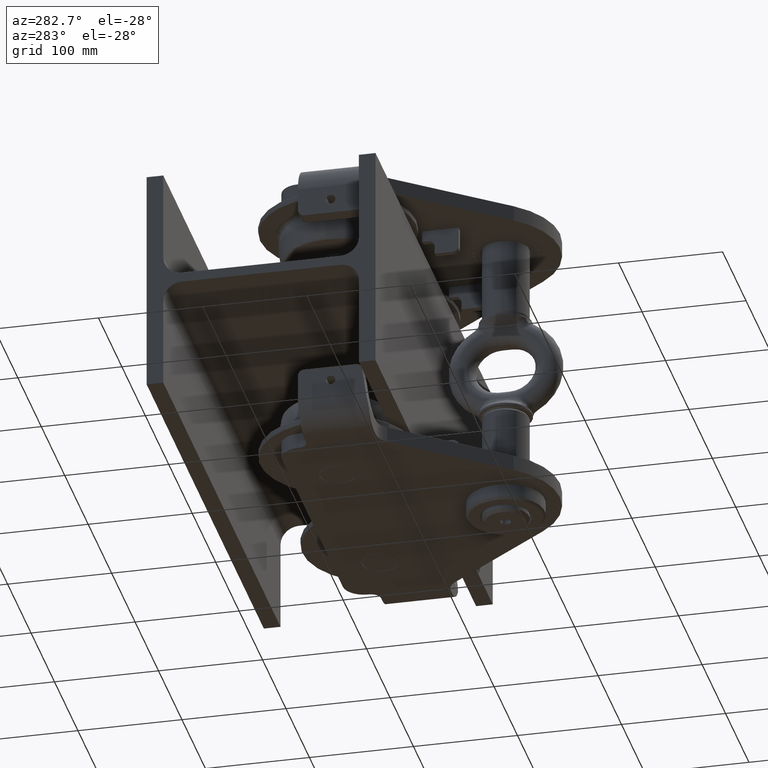
[diagram: clean part render]
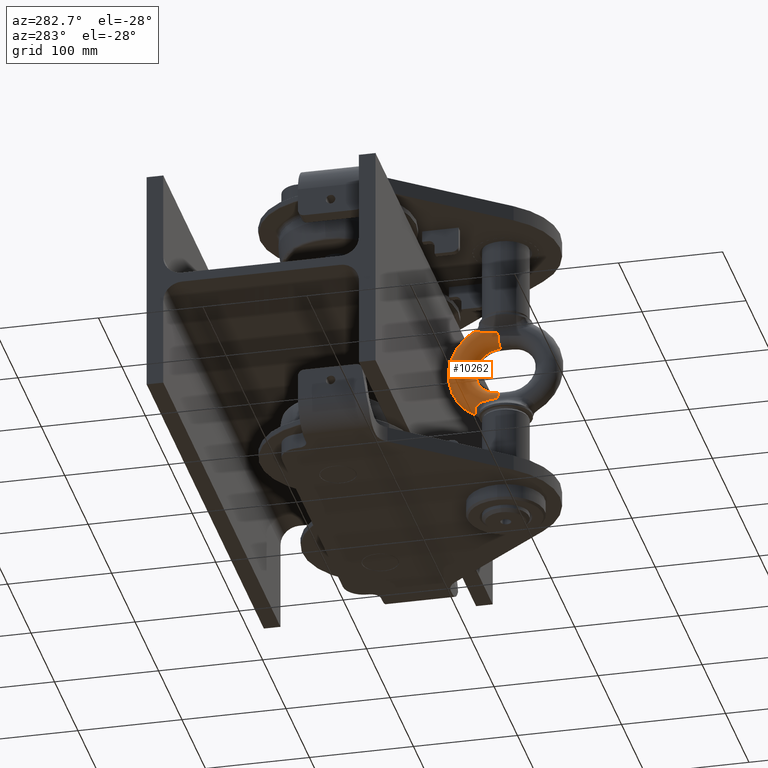
[diagram: same view with one face highlighted and labeled with its STEP entity id]
A machine part, auxiliary view. The second image highlights one B-rep face of the part: STEP entity #10262.
In plain terms, the highlighted toroidal blend (fillet) surface has major radius 37 mm and minor (blend) radius 13 mm.
Its self-contained STEP definition (entity closure, byte-faithful):
#123 = CARTESIAN_POINT ( 'NONE',  ( -4.126795824187541800, -150.3774706358872800, 43.31617817567501300 ) ) ;
#272 = CARTESIAN_POINT ( 'NONE',  ( -7.185264387827653600, -150.8312455031002900, 41.85206581027909300 ) ) ;
#387 = VERTEX_POINT ( 'NONE', #15792 ) ;
#430 = CARTESIAN_POINT ( 'NONE',  ( 2.744710946919647600E-014, -173.9999999999998300, -2.774178518931964300E-016 ) ) ;
#1069 = VERTEX_POINT ( 'NONE', #10574 ) ;
#1971 = AXIS2_PLACEMENT_3D ( 'NONE', #14862, #30727, #20926 ) ;
#2225 = CARTESIAN_POINT ( 'NONE',  ( -11.60032737261926300, -155.0634041624952600, 38.47893709284785000 ) ) ;
#2726 = VERTEX_POINT ( 'NONE', #33527 ) ;
#2748 = CARTESIAN_POINT ( 'NONE',  ( -13.00397407085162300, -165.1430070251889200, -35.67485218921547100 ) ) ;
#2946 = CARTESIAN_POINT ( 'NONE',  ( -12.49187938406649900, -157.9343161517337800, -37.30914371682165200 ) ) ;
#2961 = CARTESIAN_POINT ( 'NONE',  ( -5.108037256205252100, -150.4322352143473400, -42.92117714183658700 ) ) ;
#3496 = CARTESIAN_POINT ( 'NONE',  ( -11.78796919045115200, -155.5184320626287000, -38.26945000662115600 ) ) ;
#3677 = CARTESIAN_POINT ( 'NONE',  ( -5.106666925261316200, -150.4321372324452300, 42.92175391128027700 ) ) ;
#4170 = FACE_OUTER_BOUND ( 'NONE', #18770, .T. ) ;
#4297 = CARTESIAN_POINT ( 'NONE',  ( 2.585506863030491600E-014, -173.9999999999998300, -2.774178518931963300E-016 ) ) ;
#4404 = AXIS2_PLACEMENT_3D ( 'NONE', #15291, #21181, #30987 ) ;
#4838 = ORIENTED_EDGE ( 'NONE', *, *, #41986, .F. ) ;
#5735 = CARTESIAN_POINT ( 'NONE',  ( 2.744725740201605500E-014, -174.0000000000001400, -24.00000000000000700 ) ) ;
#5858 = CARTESIAN_POINT ( 'NONE',  ( -12.84832408835447200, -160.1608773310472900, -36.62545777020226000 ) ) ;
#5954 = CARTESIAN_POINT ( 'NONE',  ( -10.37587372167099000, -152.9682928836155600, 39.60983024298323600 ) ) ;
#6055 = CARTESIAN_POINT ( 'NONE',  ( -3.624959882921664300, -150.3724144851626600, -43.49161704077764800 ) ) ;
#6128 = CARTESIAN_POINT ( 'NONE',  ( -12.86425548061780500, -171.4631150170776600, -35.04135263025277400 ) ) ;
#6179 = CARTESIAN_POINT ( 'NONE',  ( -12.66491729358793000, -158.9504694812896400, -36.98811240190378400 ) ) ;
#6190 = CARTESIAN_POINT ( 'NONE',  ( -6.954048594210359400, -150.7519674474799000, -41.99015946408147900 ) ) ;
#6551 = VERTEX_POINT ( 'NONE', #10490 ) ;
#6625 = CARTESIAN_POINT ( 'NONE',  ( -1.322405953972530100, -150.4172242647102300, -44.01566758116266000 ) ) ;
#7088 = ORIENTED_EDGE ( 'NONE', *, *, #23896, .T. ) ;
#7165 = EDGE_CURVE ( 'NONE', #1069, #18006, #37956, .T. ) ;
#7316 = CARTESIAN_POINT ( 'NONE',  ( -12.83861664616715000, -172.7310447336118100, 34.95649181765214300 ) ) ;
#7556 = DIRECTION ( 'NONE',  ( -1.000000000000000000, 0.0000000000000000000, 6.939431567305113600E-017 ) ) ;
#7661 = DIRECTION ( 'NONE',  ( 6.939431567305119800E-017, 0.0000000000000000000, 1.000000000000000000 ) ) ;
#7798 = EDGE_CURVE ( 'NONE', #2726, #36268, #41094, .T. ) ;
#7885 = CARTESIAN_POINT ( 'NONE',  ( -13.00397407085193900, -165.1430070251586500, 35.67485218921955700 ) ) ;
#9481 = CARTESIAN_POINT ( 'NONE',  ( -0.5325024134241305200, -150.4310632052977000, -44.08722849374721200 ) ) ;
#9631 = CARTESIAN_POINT ( 'NONE',  ( -9.026466925798279900, -151.7044232427096200, -40.65823208507983100 ) ) ;
#9946 = CARTESIAN_POINT ( 'NONE',  ( -1.060627942873457100, -150.4236381271634900, 44.05541452376682100 ) ) ;
#10262 = ADVANCED_FACE ( 'NONE', ( #4170 ), #31604, .T. ) ;
#10490 = CARTESIAN_POINT ( 'NONE',  ( -10.64923492088181300, -153.3627968386385900, -39.37579039668916900 ) ) ;
#10574 = CARTESIAN_POINT ( 'NONE',  ( -12.66491729358793000, -158.9504694812896400, -36.98811240190378400 ) ) ;
#10897 = CARTESIAN_POINT ( 'NONE',  ( -13.01160287401232600, -163.8827071818277800, 35.86164647787091300 ) ) ;
#11275 = EDGE_CURVE ( 'NONE', #387, #16191, #15475, .T. ) ;
#12517 = CARTESIAN_POINT ( 'NONE',  ( -12.66491729358598500, -158.9504694812768000, 36.98811240190762100 ) ) ;
#12608 = CARTESIAN_POINT ( 'NONE',  ( -12.82598181632842000, -174.0000000000003100, -34.88004942340343500 ) ) ;
#12674 = VERTEX_POINT ( 'NONE', #17372 ) ;
#12685 = CARTESIAN_POINT ( 'NONE',  ( -5.583642498886416000, -150.4816008524955200, -42.70342754939914400 ) ) ;
#12943 = CARTESIAN_POINT ( 'NONE',  ( -11.59991964931826500, -155.0629037704025000, -38.47925817452200200 ) ) ;
#13522 = CARTESIAN_POINT ( 'NONE',  ( -12.82598181632842000, -174.0000000000003100, -34.88004942340343500 ) ) ;
#13557 = CARTESIAN_POINT ( 'NONE',  ( -6.280057891702952600, -150.6023575199406000, 42.35218688830372700 ) ) ;
#13838 = CARTESIAN_POINT ( 'NONE',  ( -8.834421653536889400, -151.5914069804493400, 40.79058265171078500 ) ) ;
#14009 = DIRECTION ( 'NONE',  ( -1.000000000000000000, 0.0000000000000000000, 0.0000000000000000000 ) ) ;
#14862 = CARTESIAN_POINT ( 'NONE',  ( 2.328747895040202500E-014, -174.0000000000003400, -37.00000000000000700 ) ) ;
#15291 = CARTESIAN_POINT ( 'NONE',  ( 2.585506863030491600E-014, -173.9999999999998300, -2.774178518931963300E-016 ) ) ;
#15475 = CIRCLE ( 'NONE', #21080, 24.00000000000000700 ) ;
#15792 = CARTESIAN_POINT ( 'NONE',  ( 2.744725740201605500E-014, -173.9999999999998300, 24.00000000000000700 ) ) ;
#16191 = VERTEX_POINT ( 'NONE', #5735 ) ;
#16510 = CARTESIAN_POINT ( 'NONE',  ( -11.16903574985336400, -154.1850741913187900, -38.91377092785835100 ) ) ;
#16571 = CARTESIAN_POINT ( 'NONE',  ( -5.583411883682780200, -150.4814319288086900, 42.70363104057202700 ) ) ;
#17357 = CARTESIAN_POINT ( 'NONE',  ( -10.64923492088180100, -153.3627968386385900, 39.37579039668915500 ) ) ;
#17372 = CARTESIAN_POINT ( 'NONE',  ( -12.82598181632842200, -173.9999999999998300, 34.88004942340346300 ) ) ;
#18006 = VERTEX_POINT ( 'NONE', #13522 ) ;
#18770 = EDGE_LOOP ( 'NONE', ( #7088, #21061, #32950, #30896, #19000, #27711, #41650, #4838, #19289, #39091 ) ) ;
#18909 = AXIS2_PLACEMENT_3D ( 'NONE', #4297, #7556, #23922 ) ;
#19000 = ORIENTED_EDGE ( 'NONE', *, *, #7165, .T. ) ;
#19289 = ORIENTED_EDGE ( 'NONE', *, *, #34032, .T. ) ;
#19499 = CARTESIAN_POINT ( 'NONE',  ( -2.613865860973597000, -150.3828980740276500, -43.78148073780955900 ) ) ;
#19669 = CARTESIAN_POINT ( 'NONE',  ( 8.090608528811870800E-014, -150.4333191911561000, 44.09775000670757100 ) ) ;
#19937 = CARTESIAN_POINT ( 'NONE',  ( -9.387460757505071000, -151.9894035919177800, 40.38863273003855200 ) ) ;
#19983 = B_SPLINE_CURVE_WITH_KNOTS ( 'NONE', 3,
 ( #22975, #35944, #16510, #12943, #3496, #41909, #22425, #2946, #25652, #6179 ),
 .UNSPECIFIED., .F., .F.,
 ( 4, 2, 2, 2, 4 ),
 ( 0.03174981577005631800, 0.03335436533337771100, 0.03495891489669909800, 0.03656346446002049100, 0.03816801402334188400 ),
 .UNSPECIFIED. ) ;
#20686 = B_SPLINE_CURVE_WITH_KNOTS ( 'NONE', 3,
 ( #25627, #26943, #28778, #25730, #2225, #38493, #42039, #17357 ),
 .UNSPECIFIED., .F., .F.,
 ( 4, 2, 2, 4 ),
 ( 0.0000000000000000000, 0.003220178139374472700, 0.004830267209061709900, 0.006440356278748947000 ),
 .UNSPECIFIED. ) ;
#20858 = CARTESIAN_POINT ( 'NONE',  ( -12.86425548061794900, -171.4631150170705800, 35.04135263025323600 ) ) ;
#20926 = DIRECTION ( 'NONE',  ( -1.000000000000000000, 0.0000000000000000000, 0.0000000000000000000 ) ) ;
#21061 = ORIENTED_EDGE ( 'NONE', *, *, #7798, .T. ) ;
#21080 = AXIS2_PLACEMENT_3D ( 'NONE', #430, #32842, #7661 ) ;
#21181 = DIRECTION ( 'NONE',  ( -1.000000000000000000, 0.0000000000000000000, 6.939431567305113600E-017 ) ) ;
#22249 = CIRCLE ( 'NONE', #1971, 13.00000000000000200 ) ;
#22425 = CARTESIAN_POINT ( 'NONE',  ( -12.25683630778038200, -156.9460247749070400, -37.67062113377613000 ) ) ;
#22572 = CARTESIAN_POINT ( 'NONE',  ( -1.060555283327042200, -150.4230001369566300, -44.04615320262742300 ) ) ;
#22885 = CARTESIAN_POINT ( 'NONE',  ( -3.623267277836816500, -150.3724000256692400, 43.49220295419954100 ) ) ;
#22975 = CARTESIAN_POINT ( 'NONE',  ( -10.64923492088181300, -153.3627968386385900, -39.37579039668916900 ) ) ;
#23344 = CARTESIAN_POINT ( 'NONE',  ( -10.64923492088180100, -153.3627968386385900, 39.37579039668915500 ) ) ;
#23550 = CARTESIAN_POINT ( 'NONE',  ( -12.96087322030948000, -167.6663269434779700, 35.36767028250149300 ) ) ;
#23896 = EDGE_CURVE ( 'NONE', #25667, #2726, #30646, .T. ) ;
#23922 = DIRECTION ( 'NONE',  ( 6.939431567305111200E-017, 0.0000000000000000000, 1.000000000000000000 ) ) ;
#24264 = EDGE_CURVE ( 'NONE', #6551, #1069, #19983, .T. ) ;
#25394 = VERTEX_POINT ( 'NONE', #12517 ) ;
#25420 = CARTESIAN_POINT ( 'NONE',  ( -10.64923492088180100, -153.3627968386385900, 39.37579039668915500 ) ) ;
#25627 = CARTESIAN_POINT ( 'NONE',  ( -12.66491729358598500, -158.9504694812768000, 36.98811240190762100 ) ) ;
#25652 = CARTESIAN_POINT ( 'NONE',  ( -12.58729649024281700, -158.4379216650295100, -37.14147868225648400 ) ) ;
#25658 = CARTESIAN_POINT ( 'NONE',  ( -4.126821747358234500, -150.3774505810309300, -43.31619287978301000 ) ) ;
#25667 = VERTEX_POINT ( 'NONE', #23344 ) ;
#25730 = CARTESIAN_POINT ( 'NONE',  ( -11.79105209948818700, -155.5263125506173200, 38.26589859638379200 ) ) ;
#25737 = CARTESIAN_POINT ( 'NONE',  ( -12.96087322030896300, -167.6663269434972700, -35.36767028249960300 ) ) ;
#26553 = CARTESIAN_POINT ( 'NONE',  ( -10.07165398613036100, -152.6130133179933400, 39.86052765113425500 ) ) ;
#26779 = AXIS2_PLACEMENT_3D ( 'NONE', #40304, #30176, #14009 ) ;
#26943 = CARTESIAN_POINT ( 'NONE',  ( -12.50940472713631600, -157.9235846398500500, 37.29538033571641600 ) ) ;
#27711 = ORIENTED_EDGE ( 'NONE', *, *, #31831, .T. ) ;
#27814 = EDGE_CURVE ( 'NONE', #25394, #25667, #20686, .T. ) ;
#28131 = CARTESIAN_POINT ( 'NONE',  ( 3.136566070267109400E-014, -150.4333191911561000, -44.09775000670757100 ) ) ;
#28434 = CARTESIAN_POINT ( 'NONE',  ( -0.2650836025595123000, -150.4333191911561000, -44.09775000670757100 ) ) ;
#28637 = CARTESIAN_POINT ( 'NONE',  ( -12.93342812546347000, -161.3923891050887100, -36.33615123827765800 ) ) ;
#28778 = CARTESIAN_POINT ( 'NONE',  ( -12.28305481571522300, -156.9384215566911700, 37.65960421630936800 ) ) ;
#28855 = CARTESIAN_POINT ( 'NONE',  ( -2.102019367001386000, -150.3980985359229700, -43.89692266608098200 ) ) ;
#29715 = CARTESIAN_POINT ( 'NONE',  ( -9.564667679473565400, -152.1377634144049600, 40.25453975947597500 ) ) ;
#29860 = CARTESIAN_POINT ( 'NONE',  ( -2.098738124110285600, -150.3981871523160400, 43.89754695330464800 ) ) ;
#30087 = CARTESIAN_POINT ( 'NONE',  ( -12.66491729358598500, -158.9504694812768000, 36.98811240190762100 ) ) ;
#30176 = DIRECTION ( 'NONE',  ( 0.0000000000000000000, -1.000000000000000000, 5.548357037863925900E-017 ) ) ;
#30225 = CARTESIAN_POINT ( 'NONE',  ( -12.82598181632842200, -173.9999999999998300, 34.88004942340346300 ) ) ;
#30519 = CARTESIAN_POINT ( 'NONE',  ( -12.92529448012872400, -168.9307525889657600, 35.24692204928851400 ) ) ;
#30646 = B_SPLINE_CURVE_WITH_KNOTS ( 'NONE', 3,
 ( #25420, #5954, #26553, #29715, #19937, #35990, #13838, #39138, #32990, #272, #33267, #39279, #13557, #16571, #3677, #123, #22885, #36134, #29860, #9946, #32834, #19669 ),
 .UNSPECIFIED., .F., .F.,
 ( 4, 2, 2, 2, 2, 2, 2, 2, 2, 2, 4 ),
 ( 0.0000000000000000000, 0.001591885831322131700, 0.002387828746983193900, 0.003183771662644256500, 0.004775657493966354800, 0.005571600409627398300, 0.006367543325288441800, 0.007959429156610541000, 0.009551314987932638500, 0.01114320081925473600, 0.01273508665057683300 ),
 .UNSPECIFIED. ) ;
#30727 = DIRECTION ( 'NONE',  ( -9.776541854337925000E-031, 1.000000000000000000, -1.414387360566590500E-014 ) ) ;
#30772 = B_SPLINE_CURVE_WITH_KNOTS ( 'NONE', 3,
 ( #28131, #28434, #9481, #22572, #6625, #28855, #19499, #6055, #25658, #2961, #12685, #38951, #6190, #39101, #38673, #9631, #42213, #35228, #35527, #41923 ),
 .UNSPECIFIED., .F., .F.,
 ( 4, 2, 2, 2, 2, 2, 2, 2, 2, 4 ),
 ( 0.01271250273648641100, 0.01350587057647734600, 0.01429923841646828200, 0.01588597409645015800, 0.01747270977643203600, 0.01905944545641391100, 0.02064618113639579000, 0.02223291681637766500, 0.02381965249635954000, 0.02540638817634141900 ),
 .UNSPECIFIED. ) ;
#30896 = ORIENTED_EDGE ( 'NONE', *, *, #24264, .T. ) ;
#30987 = DIRECTION ( 'NONE',  ( -6.939431567305113600E-017, 0.0000000000000000000, -1.000000000000000000 ) ) ;
#31302 = CARTESIAN_POINT ( 'NONE',  ( 3.136566070267109400E-014, -150.4333191911561000, -44.09775000670757100 ) ) ;
#31604 = TOROIDAL_SURFACE ( 'NONE', #4404, 37.00000000000000700, 12.99999999999999800 ) ;
#31831 = EDGE_CURVE ( 'NONE', #18006, #16191, #22249, .T. ) ;
#32029 = CARTESIAN_POINT ( 'NONE',  ( -13.01160287401262400, -163.8827071818481900, -35.86164647786738900 ) ) ;
#32834 = CARTESIAN_POINT ( 'NONE',  ( -0.5327601982018513900, -150.4333191911559300, 44.09775000670749300 ) ) ;
#32842 = DIRECTION ( 'NONE',  ( -1.000000000000000000, 0.0000000000000000000, 6.939431567305113600E-017 ) ) ;
#32950 = ORIENTED_EDGE ( 'NONE', *, *, #36709, .T. ) ;
#32990 = CARTESIAN_POINT ( 'NONE',  ( -7.839612882818099300, -151.0587496826409800, 41.45983757222785500 ) ) ;
#33267 = CARTESIAN_POINT ( 'NONE',  ( -6.961292245565657000, -150.7647429660767700, 41.98120060461799600 ) ) ;
#33527 = CARTESIAN_POINT ( 'NONE',  ( 8.090608528811870800E-014, -150.4333191911561000, 44.09775000670757100 ) ) ;
#33652 = CARTESIAN_POINT ( 'NONE',  ( -12.93342812546291900, -161.3923891050823200, 36.33615123827925000 ) ) ;
#33775 = CARTESIAN_POINT ( 'NONE',  ( -12.84832408835487500, -160.1608773310423400, 36.62545777020429900 ) ) ;
#34032 = EDGE_CURVE ( 'NONE', #12674, #25394, #37611, .T. ) ;
#35228 = CARTESIAN_POINT ( 'NONE',  ( -10.06642038137857400, -152.6074220367443700, -39.86473489950528700 ) ) ;
#35527 = CARTESIAN_POINT ( 'NONE',  ( -10.37550380759289000, -152.9677590384055200, -39.61014694716155300 ) ) ;
#35944 = CARTESIAN_POINT ( 'NONE',  ( -10.92635602188289400, -153.7627269336223300, -39.13853148770582600 ) ) ;
#35990 = CARTESIAN_POINT ( 'NONE',  ( -9.022736600924615000, -151.7166172434765500, 40.65633881358414900 ) ) ;
#36134 = CARTESIAN_POINT ( 'NONE',  ( -2.610695579334170200, -150.3829631088046000, 43.78228844782108100 ) ) ;
#36268 = VERTEX_POINT ( 'NONE', #31302 ) ;
#36709 = EDGE_CURVE ( 'NONE', #36268, #6551, #30772, .T. ) ;
#37611 = B_SPLINE_CURVE_WITH_KNOTS ( 'NONE', 3,
 ( #30225, #7316, #20858, #30519, #23550, #7885, #10897, #33652, #33775, #30087 ),
 .UNSPECIFIED., .F., .F.,
 ( 4, 2, 2, 2, 4 ),
 ( 0.0000000000000000000, 0.003811855581870854300, 0.007623711163741708600, 0.01143556674561256200, 0.01524742232748341700 ),
 .UNSPECIFIED. ) ;
#37956 = B_SPLINE_CURVE_WITH_KNOTS ( 'NONE', 3,
 ( #38457, #5858, #28637, #32029, #2748, #25737, #41595, #6128, #41739, #12608 ),
 .UNSPECIFIED., .F., .F.,
 ( 4, 2, 2, 2, 4 ),
 ( 0.0000000000000000000, 0.003802544766918553600, 0.007605089533837107100, 0.01140763430075566000, 0.01521017906767421400 ),
 .UNSPECIFIED. ) ;
#38457 = CARTESIAN_POINT ( 'NONE',  ( -12.66491729358793000, -158.9504694812896400, -36.98811240190378400 ) ) ;
#38493 = CARTESIAN_POINT ( 'NONE',  ( -11.16572434356468200, -154.1786604089126100, 38.91701954302213600 ) ) ;
#38673 = CARTESIAN_POINT ( 'NONE',  ( -8.243145802914236600, -151.2423883606397500, -41.19839717474135200 ) ) ;
#38951 = CARTESIAN_POINT ( 'NONE',  ( -6.506650606789819800, -150.6415619194000600, -42.23796198148468100 ) ) ;
#39091 = ORIENTED_EDGE ( 'NONE', *, *, #27814, .T. ) ;
#39101 = CARTESIAN_POINT ( 'NONE',  ( -7.820707397429007600, -151.0511057837800900, -41.47165292776891500 ) ) ;
#39138 = CARTESIAN_POINT ( 'NONE',  ( -8.251711402711851700, -151.2469315359499800, 41.19264843305047900 ) ) ;
#39279 = CARTESIAN_POINT ( 'NONE',  ( -6.509179994651468300, -150.6504796758968300, 42.23095948331018700 ) ) ;
#39886 = CIRCLE ( 'NONE', #26779, 13.00000000000000200 ) ;
#40304 = CARTESIAN_POINT ( 'NONE',  ( 2.842265831020781400E-014, -173.9999999999998300, 37.00000000000000700 ) ) ;
#41094 = CIRCLE ( 'NONE', #18909, 50.00000000000000000 ) ;
#41595 = CARTESIAN_POINT ( 'NONE',  ( -12.92529448012834700, -168.9307525889806500, -35.24692204928720700 ) ) ;
#41650 = ORIENTED_EDGE ( 'NONE', *, *, #11275, .F. ) ;
#41739 = CARTESIAN_POINT ( 'NONE',  ( -12.83861664616711100, -172.7310447336155300, -34.95649181765193000 ) ) ;
#41909 = CARTESIAN_POINT ( 'NONE',  ( -12.11650908822190900, -156.4594632042064300, -37.86508177072889900 ) ) ;
#41923 = CARTESIAN_POINT ( 'NONE',  ( -10.64923492088181300, -153.3627968386385900, -39.37579039668916900 ) ) ;
#41986 = EDGE_CURVE ( 'NONE', #12674, #387, #39886, .T. ) ;
#42039 = CARTESIAN_POINT ( 'NONE',  ( -10.92267875601485000, -153.7574200505211500, 39.14167980114975600 ) ) ;
#42213 = CARTESIAN_POINT ( 'NONE',  ( -9.390922991643082100, -151.9755903201203200, -40.38942612685667700 ) ) ;